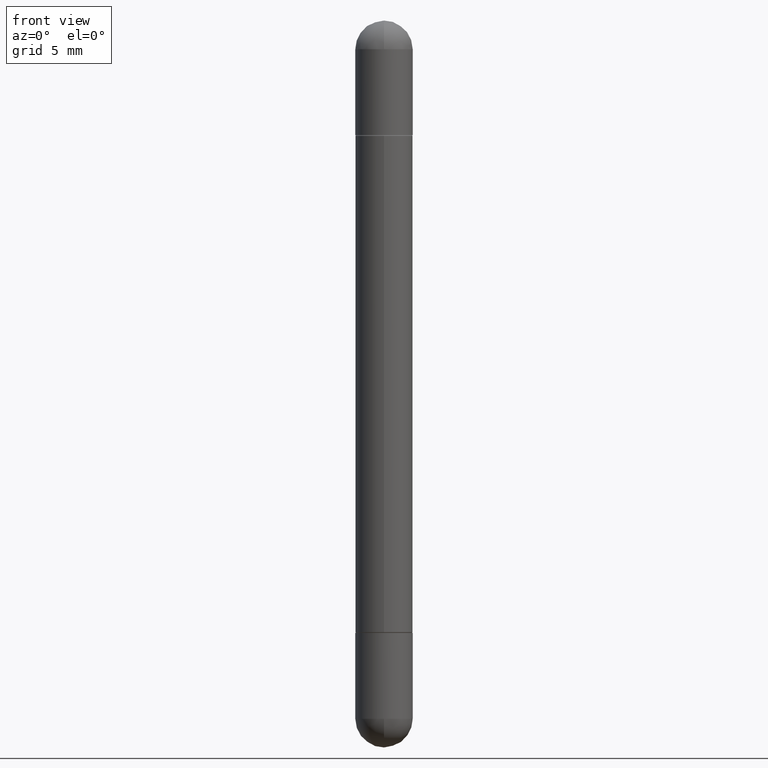
[diagram: clean part render]
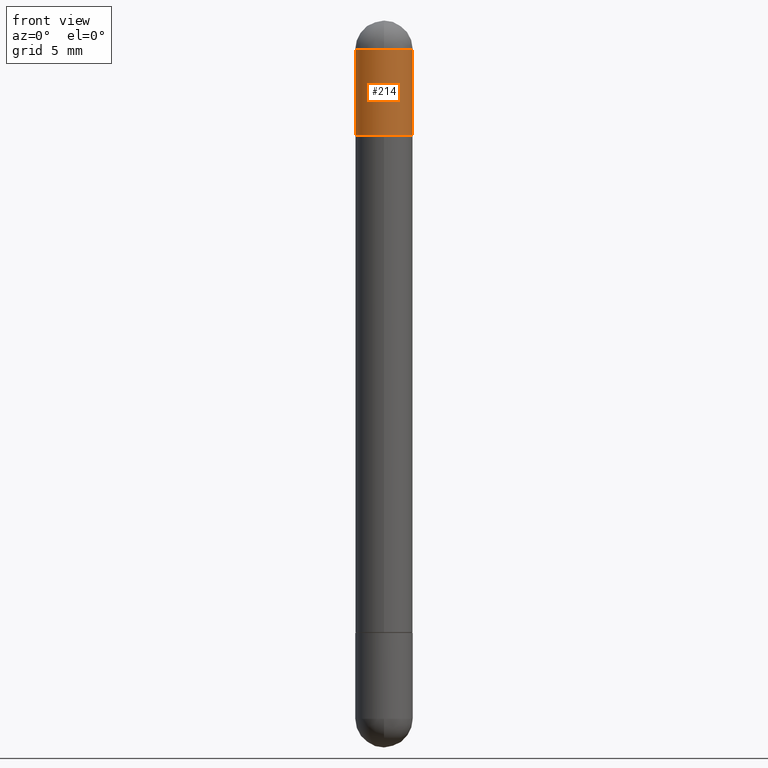
[diagram: same view with one face highlighted and labeled with its STEP entity id]
A machine part, front view. The second image highlights one B-rep face of the part: STEP entity #214.
In plain terms, the highlighted cylindrical surface (edge-blend (fillet) strip) has radius 1.4999 mm, axis along (-0, 0, -1).
Its self-contained STEP definition (entity closure, byte-faithful):
#7 = ORIENTED_EDGE ( 'NONE', *, *, #604, .F. ) ;
#20 = DIRECTION ( 'NONE',  ( 1.000000000000000000, -6.982962677686266711E-15, 0.000000000000000000 ) ) ;
#25 = EDGE_CURVE ( 'NONE', #614, #249, #470, .T. ) ;
#39 = VERTEX_POINT ( 'NONE', #642 ) ;
#69 = VECTOR ( 'NONE', #624, 39.37007874015748143 ) ;
#73 = LINE ( 'NONE', #765, #69 ) ;
#91 = CARTESIAN_POINT ( 'NONE',  ( 3.514260947928350449E-29, -5.017433257984542594E-15, -0.05905000000000028976 ) ) ;
#106 = EDGE_CURVE ( 'NONE', #39, #332, #564, .T. ) ;
#113 = DIRECTION ( 'NONE',  ( 1.000000000000000000, -6.982962677686270655E-15, 0.000000000000000000 ) ) ;
#122 = CARTESIAN_POINT ( 'NONE',  ( 0.05905000000000001914, -4.811261284925853162E-15, -0.2362000000000003264 ) ) ;
#135 = CIRCLE ( 'NONE', #589, 0.05905000000000001914 ) ;
#191 = AXIS2_PLACEMENT_3D ( 'NONE', #424, #796, #113 ) ;
#212 = CARTESIAN_POINT ( 'NONE',  ( 0.05905000000000001914, -5.120519244513884944E-15, -0.05905000000000028976 ) ) ;
#214 = ADVANCED_FACE ( 'NONE', ( #517 ), #337, .T. ) ;
#243 = ORIENTED_EDGE ( 'NONE', *, *, #712, .F. ) ;
#249 = VERTEX_POINT ( 'NONE', #212 ) ;
#261 = DIRECTION ( 'NONE',  ( 2.445468806185136597E-29, -3.491481338843145583E-15, 1.000000000000000000 ) ) ;
#271 = CARTESIAN_POINT ( 'NONE',  ( -4.051124067683763770E-16, -0.05905000000000539678, -0.05905000000000049099 ) ) ;
#305 = DIRECTION ( 'NONE',  ( -2.445468806185136877E-29, 3.491481338843145188E-15, -1.000000000000000000 ) ) ;
#327 = ORIENTED_EDGE ( 'NONE', *, *, #106, .T. ) ;
#332 = VERTEX_POINT ( 'NONE', #122 ) ;
#337 = CYLINDRICAL_SURFACE ( 'NONE', #521, 0.05905000000000001914 ) ;
#361 = CARTESIAN_POINT ( 'NONE',  ( -0.05905000000000001914, -4.303062891628101254E-15, -0.05905000000000028976 ) ) ;
#369 = VERTEX_POINT ( 'NONE', #361 ) ;
#376 = LINE ( 'NONE', #619, #783 ) ;
#424 = CARTESIAN_POINT ( 'NONE',  ( 3.081046148912652946E-29, -4.398917338808479031E-15, -0.2362000000000003264 ) ) ;
#436 = ORIENTED_EDGE ( 'NONE', *, *, #641, .T. ) ;
#450 = AXIS2_PLACEMENT_3D ( 'NONE', #706, #261, #571 ) ;
#455 = DIRECTION ( 'NONE',  ( 1.000000000000000000, -6.982962677686270655E-15, 0.000000000000000000 ) ) ;
#470 = CIRCLE ( 'NONE', #450, 0.05905000000000001914 ) ;
#499 = ORIENTED_EDGE ( 'NONE', *, *, #25, .F. ) ;
#517 = FACE_OUTER_BOUND ( 'NONE', #814, .T. ) ;
#521 = AXIS2_PLACEMENT_3D ( 'NONE', #524, #587, #20 ) ;
#524 = CARTESIAN_POINT ( 'NONE',  ( 0.000000000000000000, 0.000000000000000000, -1.496100000000000207 ) ) ;
#564 = CIRCLE ( 'NONE', #191, 0.05905000000000001914 ) ;
#571 = DIRECTION ( 'NONE',  ( 1.000000000000000000, -6.982962677686270655E-15, 0.000000000000000000 ) ) ;
#587 = DIRECTION ( 'NONE',  ( -2.445468806185136597E-29, 3.491481338843145583E-15, -1.000000000000000000 ) ) ;
#589 = AXIS2_PLACEMENT_3D ( 'NONE', #91, #595, #455 ) ;
#595 = DIRECTION ( 'NONE',  ( 2.445468806185136597E-29, -3.491481338843145583E-15, 1.000000000000000000 ) ) ;
#604 = EDGE_CURVE ( 'NONE', #369, #614, #135, .T. ) ;
#614 = VERTEX_POINT ( 'NONE', #271 ) ;
#619 = CARTESIAN_POINT ( 'NONE',  ( -0.05905000000000001914, 4.051124067684090655E-16, -1.496100000000000207 ) ) ;
#624 = DIRECTION ( 'NONE',  ( -2.445468806185136877E-29, 3.491481338843145188E-15, -1.000000000000000000 ) ) ;
#641 = EDGE_CURVE ( 'NONE', #369, #39, #376, .T. ) ;
#642 = CARTESIAN_POINT ( 'NONE',  ( -0.05905000000000001914, -4.303062891628101254E-15, -0.2362000000000003264 ) ) ;
#706 = CARTESIAN_POINT ( 'NONE',  ( 3.514260947928350449E-29, -5.017433257984542594E-15, -0.05905000000000028976 ) ) ;
#712 = EDGE_CURVE ( 'NONE', #249, #332, #73, .T. ) ;
#765 = CARTESIAN_POINT ( 'NONE',  ( 0.05905000000000001914, -4.123439461173741806E-16, -1.496100000000000207 ) ) ;
#783 = VECTOR ( 'NONE', #305, 39.37007874015748143 ) ;
#796 = DIRECTION ( 'NONE',  ( 2.445468806185136597E-29, -3.491481338843145583E-15, 1.000000000000000000 ) ) ;
#814 = EDGE_LOOP ( 'NONE', ( #7, #436, #327, #243, #499 ) ) ;